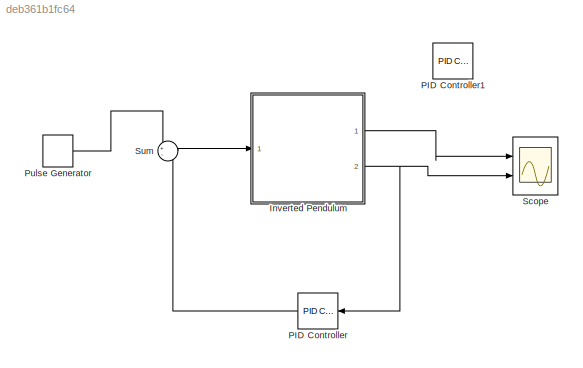
MODEL slx_deb361b1fc64
KIND model
CONFIG AbsTol = auto
CONFIG EnableMultiTasking = off
CONFIG FixedStep = auto
CONFIG MaxStep = auto
CONFIG MinStep = auto
CONFIG RelTol = 1e-3
CONFIG SampleTimeConstraint = Unconstrained
CONFIG Solver = VariableStepAuto
CONFIG SolverName = VariableStepAuto
CONFIG StartTime = 0.0
CONFIG StopTime = 10.0
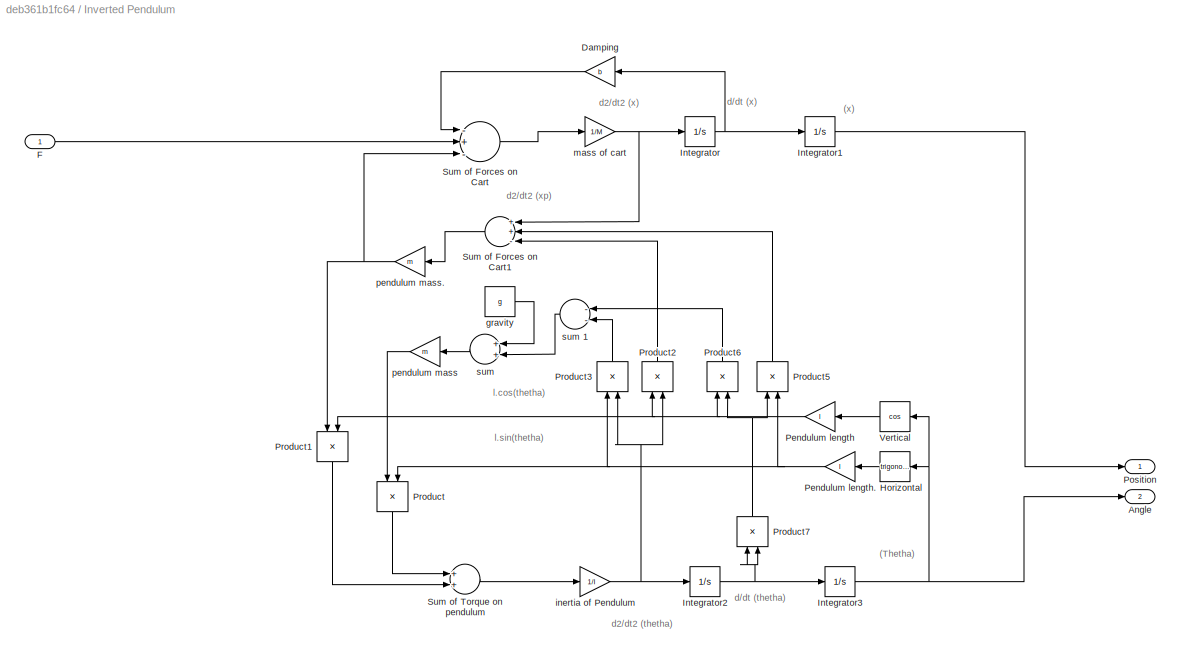
BLOCK [SubSystem] Inverted Pendulum 
  Ports = [1, 2]
  RequestExecContextInheritance = off
BLOCK [Outport] Inverted Pendulum /Angle
  IconDisplay = Port number
  Port = 2
BLOCK [Gain] Inverted Pendulum /Damping
  Gain = b
  OutDataTypeStr = Inherit: Inherit via internal rule
  ParamDataTypeStr = Inherit: Inherit via internal rule
  SaturateOnIntegerOverflow = off
BLOCK [Inport] Inverted Pendulum /F
  IconDisplay = Port number
BLOCK [Trigonometry] Inverted Pendulum /Horizontal
  Ports = [1, 1]
BLOCK [Integrator] Inverted Pendulum /Integrator
  Ports = [1, 1]
BLOCK [Integrator] Inverted Pendulum /Integrator1
  Ports = [1, 1]
BLOCK [Integrator] Inverted Pendulum /Integrator2
  Ports = [1, 1]
BLOCK [Integrator] Inverted Pendulum /Integrator3
  Ports = [1, 1]
BLOCK [Gain] Inverted Pendulum /Pendulum length
  Gain = l
  OutDataTypeStr = Inherit: Inherit via internal rule
  ParamDataTypeStr = Inherit: Inherit via internal rule
  SaturateOnIntegerOverflow = off
BLOCK [Gain] Inverted Pendulum /Pendulum length.
  Gain = l
  OutDataTypeStr = Inherit: Inherit via internal rule
  ParamDataTypeStr = Inherit: Inherit via internal rule
  SaturateOnIntegerOverflow = off
BLOCK [Outport] Inverted Pendulum /Position
  IconDisplay = Port number
BLOCK [Product] Inverted Pendulum /Product
  InputSameDT = off
  OutDataTypeStr = Inherit: Inherit via internal rule
  Ports = [2, 1]
  RndMeth = Floor
  SaturateOnIntegerOverflow = off
BLOCK [Product] Inverted Pendulum /Product1
  InputSameDT = off
  OutDataTypeStr = Inherit: Inherit via internal rule
  Ports = [2, 1]
  RndMeth = Floor
  SaturateOnIntegerOverflow = off
BLOCK [Product] Inverted Pendulum /Product2
  InputSameDT = off
  OutDataTypeStr = Inherit: Inherit via internal rule
  Ports = [2, 1]
  RndMeth = Floor
  SaturateOnIntegerOverflow = off
BLOCK [Product] Inverted Pendulum /Product3
  InputSameDT = off
  OutDataTypeStr = Inherit: Inherit via internal rule
  Ports = [2, 1]
  RndMeth = Floor
  SaturateOnIntegerOverflow = off
BLOCK [Product] Inverted Pendulum /Product5
  InputSameDT = off
  OutDataTypeStr = Inherit: Inherit via internal rule
  Ports = [2, 1]
  RndMeth = Floor
  SaturateOnIntegerOverflow = off
BLOCK [Product] Inverted Pendulum /Product6
  InputSameDT = off
  OutDataTypeStr = Inherit: Inherit via internal rule
  Ports = [2, 1]
  RndMeth = Floor
  SaturateOnIntegerOverflow = off
BLOCK [Product] Inverted Pendulum /Product7
  InputSameDT = off
  OutDataTypeStr = Inherit: Inherit via internal rule
  Ports = [2, 1]
  RndMeth = Floor
  SaturateOnIntegerOverflow = off
BLOCK [Sum] Inverted Pendulum /Sum of Forces on Cart
  InputSameDT = off
  Inputs = -+-
  OutDataTypeStr = Inherit: Inherit via internal rule
  Ports = [3, 1]
  SaturateOnIntegerOverflow = off
BLOCK [Sum] Inverted Pendulum /Sum of Forces on Cart1
  InputSameDT = off
  Inputs = ++-
  OutDataTypeStr = Inherit: Inherit via internal rule
  Ports = [3, 1]
  SaturateOnIntegerOverflow = off
BLOCK [Sum] Inverted Pendulum /Sum of Torque  on pendulum
  InputSameDT = off
  OutDataTypeStr = Inherit: Inherit via internal rule
  Ports = [2, 1]
  SaturateOnIntegerOverflow = off
BLOCK [Trigonometry] Inverted Pendulum /Vertical
  Operator = cos
  Ports = [1, 1]
BLOCK [Constant] Inverted Pendulum /gravity
  Value = g
BLOCK [Gain] Inverted Pendulum /inertia of Pendulum 
  Gain = 1/I
  OutDataTypeStr = Inherit: Inherit via internal rule
  ParamDataTypeStr = Inherit: Inherit via internal rule
  SaturateOnIntegerOverflow = off
BLOCK [Gain] Inverted Pendulum /mass of cart
  Gain = 1/M
  OutDataTypeStr = Inherit: Inherit via internal rule
  ParamDataTypeStr = Inherit: Inherit via internal rule
  SaturateOnIntegerOverflow = off
BLOCK [Gain] Inverted Pendulum /pendulum mass 
  Gain = m
  OutDataTypeStr = Inherit: Inherit via internal rule
  ParamDataTypeStr = Inherit: Inherit via internal rule
  SaturateOnIntegerOverflow = off
BLOCK [Gain] Inverted Pendulum /pendulum mass. 
  Gain = m
  OutDataTypeStr = Inherit: Inherit via internal rule
  ParamDataTypeStr = Inherit: Inherit via internal rule
  SaturateOnIntegerOverflow = off
BLOCK [Sum] Inverted Pendulum /sum 
  InputSameDT = off
  OutDataTypeStr = Inherit: Inherit via internal rule
  Ports = [2, 1]
  SaturateOnIntegerOverflow = off
BLOCK [Sum] Inverted Pendulum /sum 1
  InputSameDT = off
  Inputs = --
  OutDataTypeStr = Inherit: Inherit via internal rule
  Ports = [2, 1]
  SaturateOnIntegerOverflow = off
BLOCK [Reference] PID Controller  REF=simulink/Continuous/PID Controller
  Ports = [1, 1]
  SourceBlock = simulink/Continuous/PID Controller
  SourceProductBaseCode = SL
  SourceProductName = Simulink
  SourceType = PID 1dof
BLOCK [Reference] PID Controller1  REF=simulink/Continuous/PID Controller
  Ports = [1, 1]
  SourceBlock = simulink/Continuous/PID Controller
  SourceProductBaseCode = SL
  SourceProductName = Simulink
  SourceType = PID 1dof
BLOCK [DiscretePulseGenerator] Pulse Generator
  Amplitude = 1000
  Period = 10
  Ports = [0, 1]
  PulseType = Time based
  PulseWidth = 0.1
BLOCK [Scope] Scope
  Floating = off
  NumInputPorts = 2
  Ports = [2]
  ScopeSpecificationString = Simulink.scopes.TimeScopeBlockCfg('CurrentConfiguration', extmgr.ConfigurationSet(extmgr.Configuration('Core','General UI',true),extmgr.Configuration('Core','Source UI',true),extmgr.Configuration('Sources','WiredSimulink',true),extmgr.Configuration('Visuals','Time Domain',true,'SerializedDisplays',{struct('MinYLimReal','-1.00000','MaxYLimReal','1.00000','YLabelReal','','MinYLimMag','0.00000','MaxY...<+2011ch>
BLOCK [Sum] Sum
  IconShape = round
  InputSameDT = off
  Inputs = +-
  OutDataTypeStr = Inherit: Inherit via internal rule
  Ports = [2, 1]
  SaturateOnIntegerOverflow = off
ANNOTATION Inverted Pendulum : (Thetha)
ANNOTATION Inverted Pendulum : (x)
ANNOTATION Inverted Pendulum : d/dt (thetha)
ANNOTATION Inverted Pendulum : d/dt (x)
ANNOTATION Inverted Pendulum : d2/dt2 (thetha)
ANNOTATION Inverted Pendulum : d2/dt2 (x)
ANNOTATION Inverted Pendulum : d2/dt2 (xp)
ANNOTATION Inverted Pendulum : l.cos(thetha)
ANNOTATION Inverted Pendulum : l.sin(thetha)
LINE Inverted Pendulum /Damping:1 -> Inverted Pendulum /Sum of Forces on Cart:1
LINE Inverted Pendulum /F:1 -> Inverted Pendulum /Sum of Forces on Cart:2
LINE Inverted Pendulum /Horizontal:1 -> Inverted Pendulum /Pendulum length.:1
LINE Inverted Pendulum /Integrator1:1 -> Inverted Pendulum /Position:1
NET Inverted Pendulum /Integrator2:1 -> Inverted Pendulum /Integrator3:1, Inverted Pendulum /Product7:1, Inverted Pendulum /Product7:2
NET Inverted Pendulum /Integrator3:1 -> Inverted Pendulum /Angle:1, Inverted Pendulum /Horizontal:1, Inverted Pendulum /Vertical:1
NET Inverted Pendulum /Integrator:1 -> Inverted Pendulum /Damping:1, Inverted Pendulum /Integrator1:1
NET Inverted Pendulum /Pendulum length.:1 -> Inverted Pendulum /Product3:1, Inverted Pendulum /Product5:2, Inverted Pendulum /Product:2
NET Inverted Pendulum /Pendulum length:1 -> Inverted Pendulum /Product1:2, Inverted Pendulum /Product2:1, Inverted Pendulum /Product6:1
LINE Inverted Pendulum /Product1:1 -> Inverted Pendulum /Sum of Torque  on pendulum:2
LINE Inverted Pendulum /Product2:1 -> Inverted Pendulum /Sum of Forces on Cart1:3
LINE Inverted Pendulum /Product3:1 -> Inverted Pendulum /sum 1:2
LINE Inverted Pendulum /Product5:1 -> Inverted Pendulum /Sum of Forces on Cart1:2
LINE Inverted Pendulum /Product6:1 -> Inverted Pendulum /sum 1:1
NET Inverted Pendulum /Product7:1 -> Inverted Pendulum /Product5:1, Inverted Pendulum /Product6:2
LINE Inverted Pendulum /Product:1 -> Inverted Pendulum /Sum of Torque  on pendulum:1
LINE Inverted Pendulum /Sum of Forces on Cart1:1 -> Inverted Pendulum /pendulum mass. :1
LINE Inverted Pendulum /Sum of Forces on Cart:1 -> Inverted Pendulum /mass of cart:1
LINE Inverted Pendulum /Sum of Torque  on pendulum:1 -> Inverted Pendulum /inertia of Pendulum :1
LINE Inverted Pendulum /Vertical:1 -> Inverted Pendulum /Pendulum length:1
LINE Inverted Pendulum /gravity:1 -> Inverted Pendulum /sum :1
NET Inverted Pendulum /inertia of Pendulum :1 -> Inverted Pendulum /Integrator2:1, Inverted Pendulum /Product2:2, Inverted Pendulum /Product3:2
NET Inverted Pendulum /mass of cart:1 -> Inverted Pendulum /Integrator:1, Inverted Pendulum /Sum of Forces on Cart1:1
LINE Inverted Pendulum /pendulum mass :1 -> Inverted Pendulum /Product:1
NET Inverted Pendulum /pendulum mass. :1 -> Inverted Pendulum /Product1:1, Inverted Pendulum /Sum of Forces on Cart:3
LINE Inverted Pendulum /sum 1:1 -> Inverted Pendulum /sum :2
LINE Inverted Pendulum /sum :1 -> Inverted Pendulum /pendulum mass :1
LINE Inverted Pendulum :1 -> Scope:1
NET Inverted Pendulum :2 -> PID Controller:1, Scope:2
LINE PID Controller:1 -> Sum:2
LINE Pulse Generator:1 -> Sum:1
LINE Sum:1 -> Inverted Pendulum :1
note: NET lines group one-source signal fan-out (src -> all destinations, sorted); 1:1 wires keep LINE
